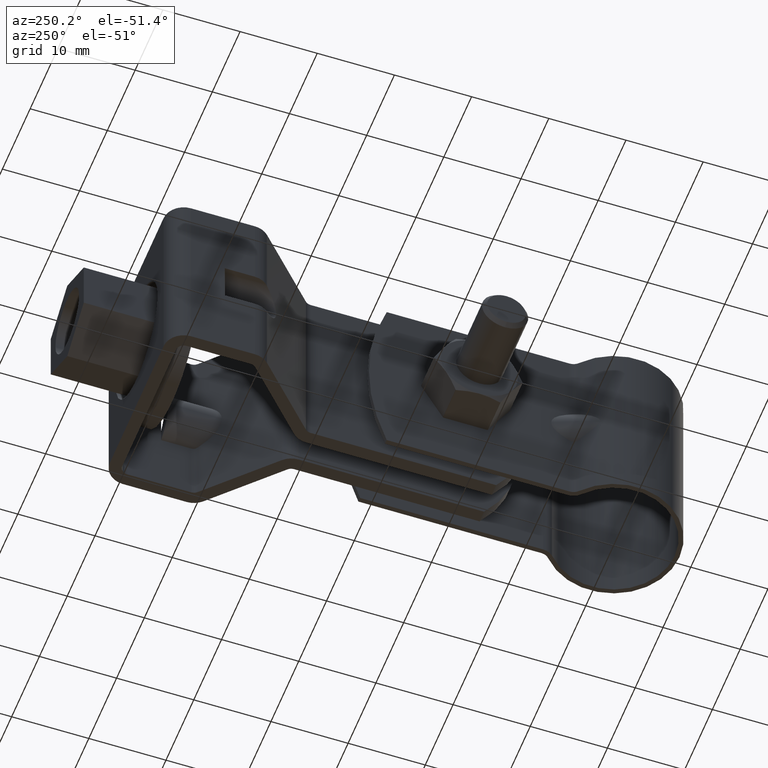
[diagram: clean part render]
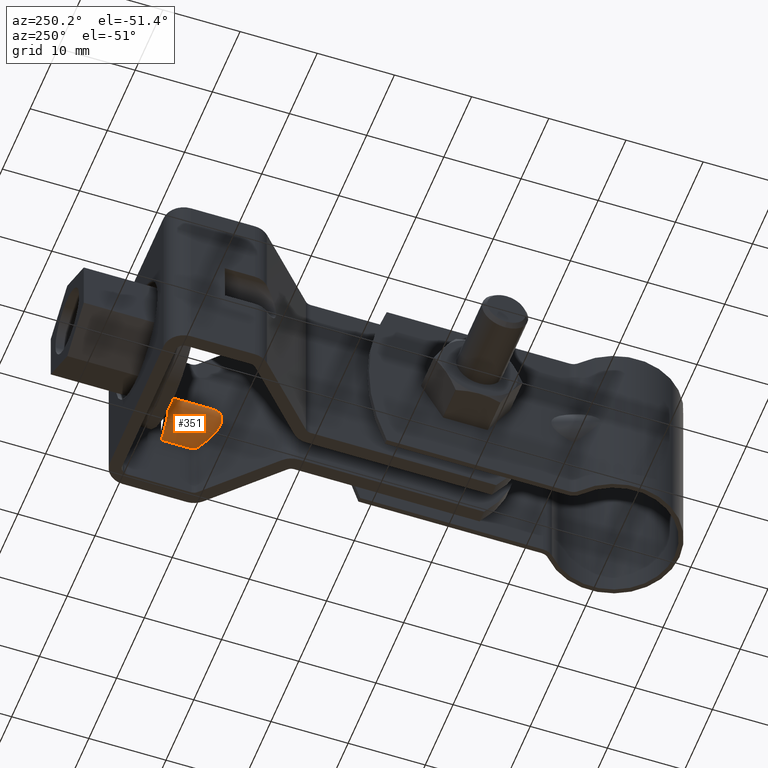
[diagram: same view with one face highlighted and labeled with its STEP entity id]
A machine part, auxiliary view. The second image highlights one B-rep face of the part: STEP entity #351.
In plain terms, the highlighted cylindrical surface (edge-blend (fillet) strip) has radius 4.25 mm, axis along (-0, -1, -0).
Its self-contained STEP definition (entity closure, byte-faithful):
#351 = ADVANCED_FACE( '', ( #572 ), #573, .T. );
#572 = FACE_OUTER_BOUND( '', #844, .T. );
#573 = CYLINDRICAL_SURFACE( '', #845, 4.24999999999996 );
#844 = EDGE_LOOP( '', ( #1583, #1584, #1585, #1586, #1587, #1588 ) );
#845 = AXIS2_PLACEMENT_3D( '', #1589, #1590, #1591 );
#1583 = ORIENTED_EDGE( '', *, *, #2137, .T. );
#1584 = ORIENTED_EDGE( '', *, *, #2138, .T. );
#1585 = ORIENTED_EDGE( '', *, *, #2139, .F. );
#1586 = ORIENTED_EDGE( '', *, *, #2140, .T. );
#1587 = ORIENTED_EDGE( '', *, *, #2141, .T. );
#1588 = ORIENTED_EDGE( '', *, *, #2142, .T. );
#1589 = CARTESIAN_POINT( '', ( 12.2500000034749, 44.7916808092987, 1.21749312020913E-006 ) );
#1590 = DIRECTION( '', ( -1.39877502405819E-011, -1.00000000000000, -9.98350074832281E-009 ) );
#1591 = DIRECTION( '', ( -1.87909263230408E-011, 9.98350074832307E-009, -1.00000000000000 ) );
#2137 = EDGE_CURVE( '', #2599, #2600, #2601, .T. );
#2138 = EDGE_CURVE( '', #2600, #2602, #2603, .T. );
#2139 = EDGE_CURVE( '', #2604, #2602, #2605, .T. );
#2140 = EDGE_CURVE( '', #2604, #2606, #2607, .F. );
#2141 = EDGE_CURVE( '', #2606, #2608, #2609, .T. );
#2142 = EDGE_CURVE( '', #2608, #2599, #2610, .T. );
#2599 = VERTEX_POINT( '', #3358 );
#2600 = VERTEX_POINT( '', #3359 );
#2601 = B_SPLINE_CURVE_WITH_KNOTS( '', 3, ( #3360, #3361, #3362, #3363, #3364, #3365 ), .UNSPECIFIED., .F., .F., ( 4, 2, 4 ), ( 1.93947980722447E-018, 0.000404290461596237, 0.000808580923192472 ), .UNSPECIFIED. );
#2602 = VERTEX_POINT( '', #3366 );
#2603 = LINE( '', #3367, #3368 );
#2604 = VERTEX_POINT( '', #3369 );
#2605 = CIRCLE( '', #3370, 4.24999999999996 );
#2606 = VERTEX_POINT( '', #3371 );
#2607 = LINE( '', #3372, #3373 );
#2608 = VERTEX_POINT( '', #3374 );
#2609 = B_SPLINE_CURVE_WITH_KNOTS( '', 3, ( #3375, #3376, #3377, #3378, #3379, #3380 ), .UNSPECIFIED., .F., .F., ( 4, 2, 4 ), ( 0.000000000000000, 0.000404110423349704, 0.000808220846699407 ), .UNSPECIFIED. );
#2610 = ELLIPSE( '', #3381, 5.93756228945901, 4.24999999999996 );
#3358 = CARTESIAN_POINT( '', ( 10.3483238391521, 50.1717045757518, 3.80080747065226 ) );
#3359 = CARTESIAN_POINT( '', ( 10.6500000036342, 50.8874865389032, 3.93732270290262 ) );
#3360 = CARTESIAN_POINT( '', ( 10.3483238391521, 50.1717045757518, 3.80080747065226 ) );
#3361 = CARTESIAN_POINT( '', ( 10.4403809039413, 50.2615163416615, 3.84686683808462 ) );
#3362 = CARTESIAN_POINT( '', ( 10.5165797567790, 50.3709616796670, 3.88085465233533 ) );
#3363 = CARTESIAN_POINT( '', ( 10.6216014719591, 50.6159188934664, 3.92607907983680 ) );
#3364 = CARTESIAN_POINT( '', ( 10.6500000036323, 50.7507618655105, 3.93732270153763 ) );
#3365 = CARTESIAN_POINT( '', ( 10.6500000036342, 50.8874865389032, 3.93732270290262 ) );
#3366 = CARTESIAN_POINT( '', ( 10.6500000036888, 54.7916807700128, 3.93732274188013 ) );
#3367 = CARTESIAN_POINT( '', ( 10.6500000034790, 39.7916807700131, 3.93732259212763 ) );
#3368 = VECTOR( '', #4006, 1000.00000000000 );
#3369 = CARTESIAN_POINT( '', ( 10.6500000035410, 54.7916808486293, -3.93732010716383 ) );
#3370 = AXIS2_PLACEMENT_3D( '', #4007, #4008, #4009 );
#3371 = CARTESIAN_POINT( '', ( 10.6500000034864, 50.8874866175197, -3.93732014614137 ) );
#3372 = CARTESIAN_POINT( '', ( 10.6500000033312, 39.7916808486296, -3.93732025691636 ) );
#3373 = VECTOR( '', #4010, 1000.00000000000 );
#3374 = CARTESIAN_POINT( '', ( 10.3483238390094, 50.1717046516425, -3.80080492817170 ) );
#3375 = CARTESIAN_POINT( '', ( 10.6500000034864, 50.8874866175197, -3.93732014614137 ) );
#3376 = CARTESIAN_POINT( '', ( 10.6500000034844, 50.7508108147332, -3.93732014750587 ) );
#3377 = CARTESIAN_POINT( '', ( 10.6217333119510, 50.6164207897449, -3.92612969839699 ) );
#3378 = CARTESIAN_POINT( '', ( 10.5168996536827, 50.3715144256617, -3.88099344743581 ) );
#3379 = CARTESIAN_POINT( '', ( 10.4403731886112, 50.2615088914618, -3.84686043363733 ) );
#3380 = CARTESIAN_POINT( '', ( 10.3483238390094, 50.1717046516425, -3.80080492817170 ) );
#3381 = AXIS2_PLACEMENT_3D( '', #4011, #4012, #4013 );
#4006 = DIRECTION( '', ( 1.39877502405819E-011, 1.00000000000000, 9.98350074832280E-009 ) );
#4007 = CARTESIAN_POINT( '', ( 12.2500000036148, 54.7916808092987, 1.31732812158614E-006 ) );
#4008 = DIRECTION( '', ( 1.39877502405819E-011, 1.00000000000000, 9.98350074832281E-009 ) );
#4009 = DIRECTION( '', ( -1.87697014710994E-011, 9.98350074832307E-009, -1.00000000000000 ) );
#4010 = DIRECTION( '', ( 1.39877502405819E-011, 1.00000000000000, 9.98350074832280E-009 ) );
#4011 = CARTESIAN_POINT( '', ( 12.2500000035761, 52.0269983468712, 1.28972690860429E-006 ) );
#4012 = DIRECTION( '', ( -0.698323835520488, 0.715781964528273, 7.15911722642151E-009 ) );
#4013 = DIRECTION( '', ( 0.715781964528273, 0.698323835520488, 6.95828139975370E-009 ) );